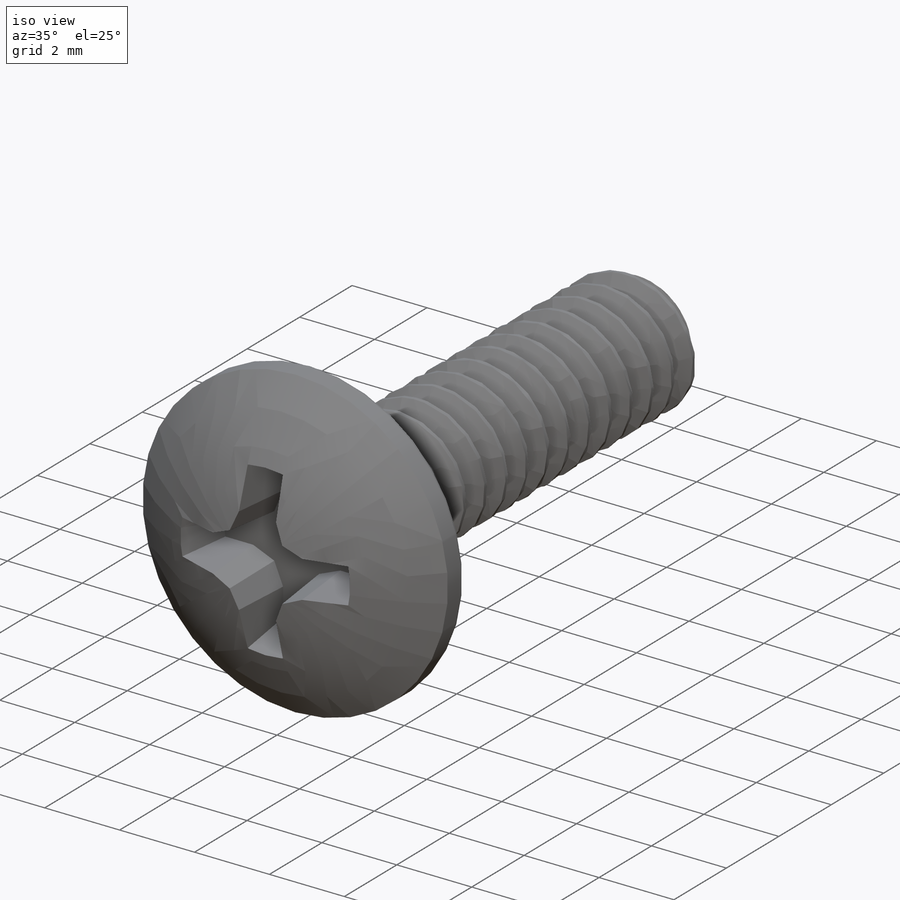
[diagram: iso view]
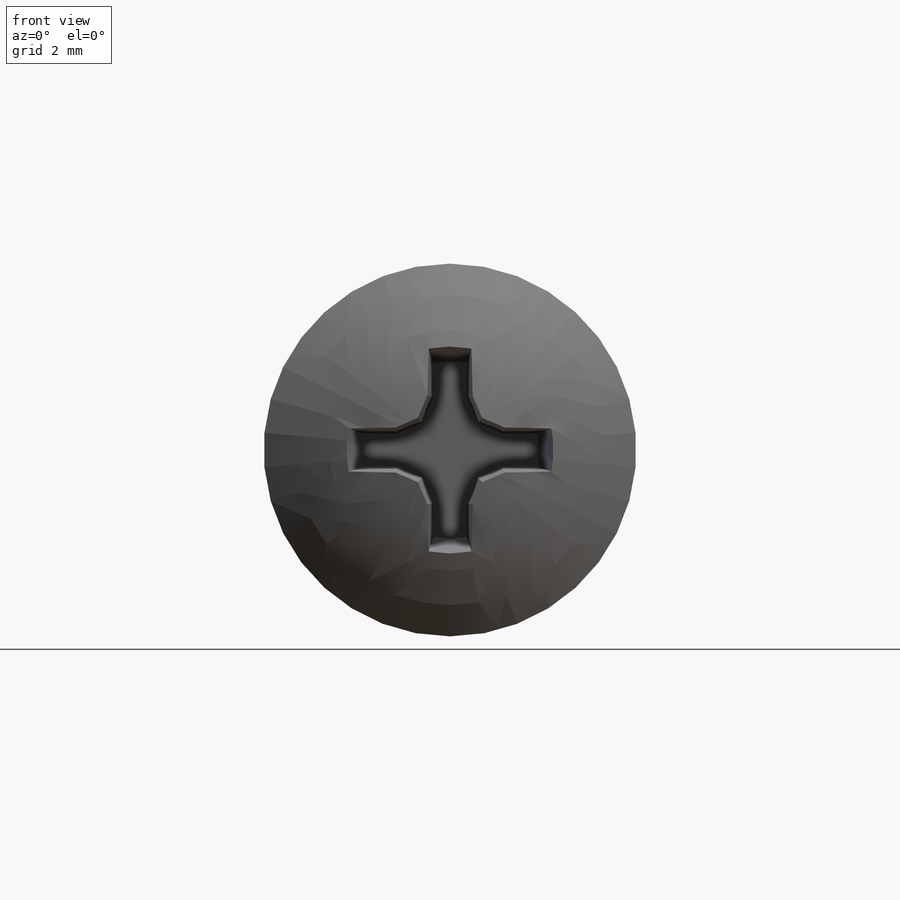
[diagram: front view]
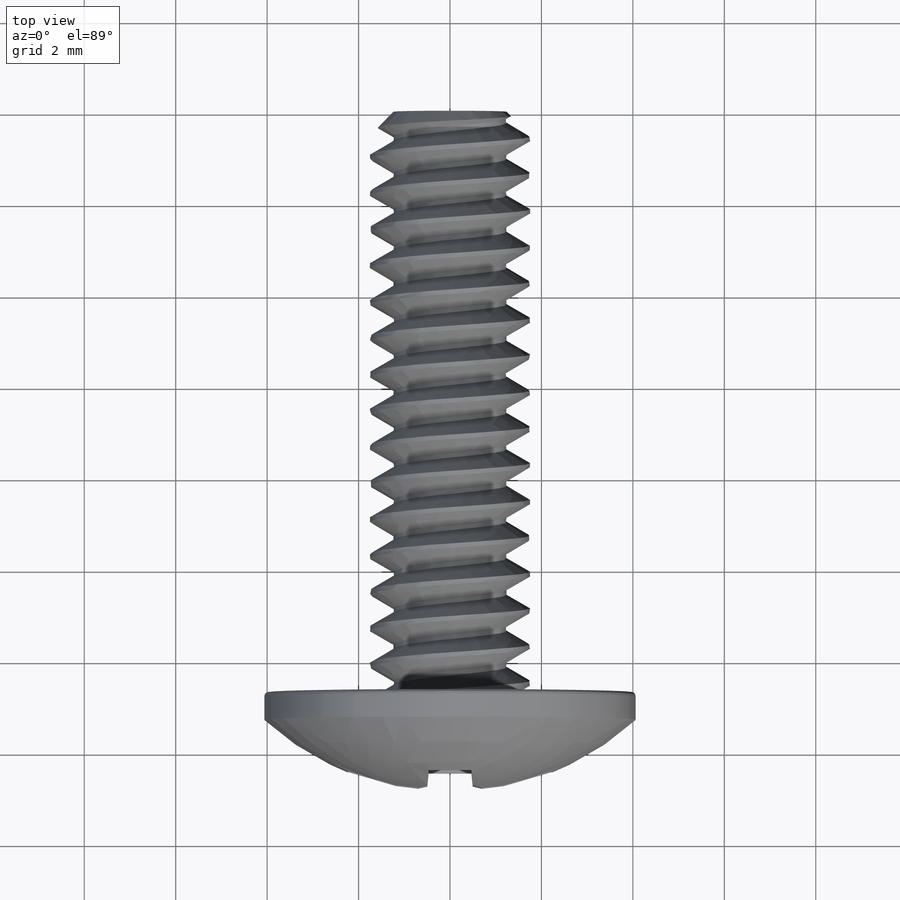
[diagram: top view]
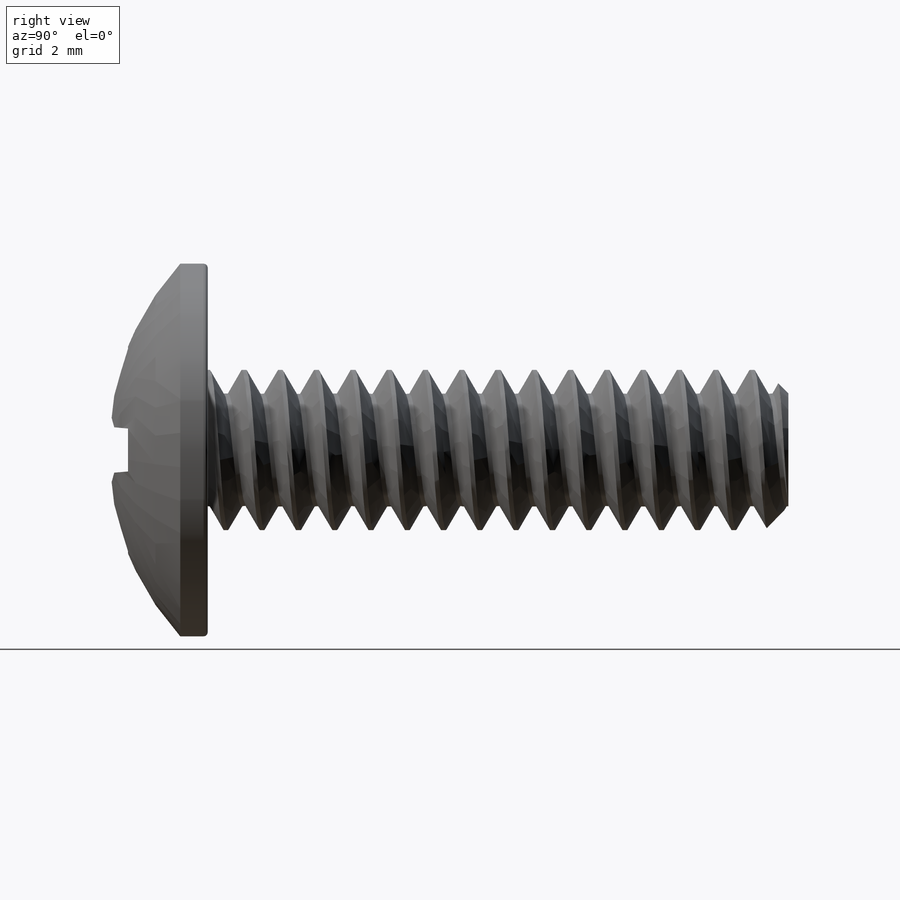
[diagram: right view]
SOLIDWORKS PART (.sldprt)
format: sldprt  version: not decoded by parser v0  size: 634,368 bytes
history: native  units: mm
features: sketch x11, cut_revolve x3, helix x2, revolve x2, sweep x2, pattern_circular x2, material x1, plane x1, cut_extrude x1, extrude x1 (+12 scaffold rows collapsed)
feature tree (38):
  scaffold x12  (default folders/planes/origin — collapsed)
  material  "Material <not specified>"
  sketch  "Sketch1"  dims[decimal equ=3.5052mm]
  helix  "Helix/Spiral1"  Pitch=25.4mm helix length=25.4mm pitch=0.79375mm TPI=32
  sketch  "Sketch2"  dims[c1.D1=~1.278166mm c2.D1=60.0deg c2.D2=~2.687556mm c3.D2=30.0deg c3.D3=~0.099219mm c3.D4=~0.396875mm]
  sketch  "Sketch3"  dims[D1=25.4mm]
  revolve  "Revolve1"  Angle=360deg
  sweep  "Sweep1"
  sketch  "Sketch6"  dims[D1=0.0mm]
  sketch  "Sketch7"  dims[D1=0.0mm]
  helix  "Helix/Spiral2"  Pitch=0.79375mm
  sweep  "Sweep2"
  sketch  "Sketch4"  dims[c1.D1=2.54mm c1.D2=2.54mm c2.D2=45.0deg c2.D3=3.175mm]
  cut_revolve  "Cut-Revolve1"  Angle=360deg
  sketch  "Sketch10"  dims[screw length=12.7mm D1=254.0mm D2=12.7mm]
  cut_revolve  "Cut-Revolve2"  Angle=360deg
  sketch  "Sketch8"  dims[screw length=25.4mm head dia=8.1534mm head height=2.1844mm D1=12.7mm]
  revolve  "Revolve2"  Angle=360deg
  sketch  "Sketch11"  dims[c1.D1=0.6858mm c1.D5=0.508mm c1.D6=~0.090107mm c1.D7=~0.123634mm c1.D2=0.635mm c1.D3=0.635mm c1.D4=0.635mm c2.D1=~0.60071mm c2.D5=0.6858mm]
  cut_revolve  "Cut-Revolve3"  Angle=360deg
  plane  "Plane1"
  sketch  "Sketch12"  dims[c1.phillips dia=3.175mm c2.phillips dia=3.175mm c3.phillips dia=4.7625mm c3.D2=~2.38125mm c4.D2=45.0deg c4.D3=0.508mm c4.D4=~2.38125mm c5.D4=22.5deg c5.slot width=1.016mm c5.phillips dia=4.7625mm c5.D1=~6.651065mm c6.D1=45.0deg c6.D2=~6.651065mm c7.D2=22.5deg c7.blade width=1.016mm c7.D5=~4.695613mm c8.D5=22.5deg]
  cut_extrude  "Cut-Extrude1"  Depth=1.6383mm
  pattern_circular  "CirPattern1"  Count=4 Angle=360deg
  pattern_circular  "Draft2"  Angle=5deg  [1 undecoded]
  sketch  "Sketch13"  dims[D1=0.0508mm]
  extrude  "Extrude1"  Depth=38.1mm
decode coverage: 22 of 24 modeling features carry decoded parameters
note: ~ marks probable driven/reference dimensions
note: 1 parameter value undecoded
note: suppression state not decoded; provenance and decode notes live in map.json
